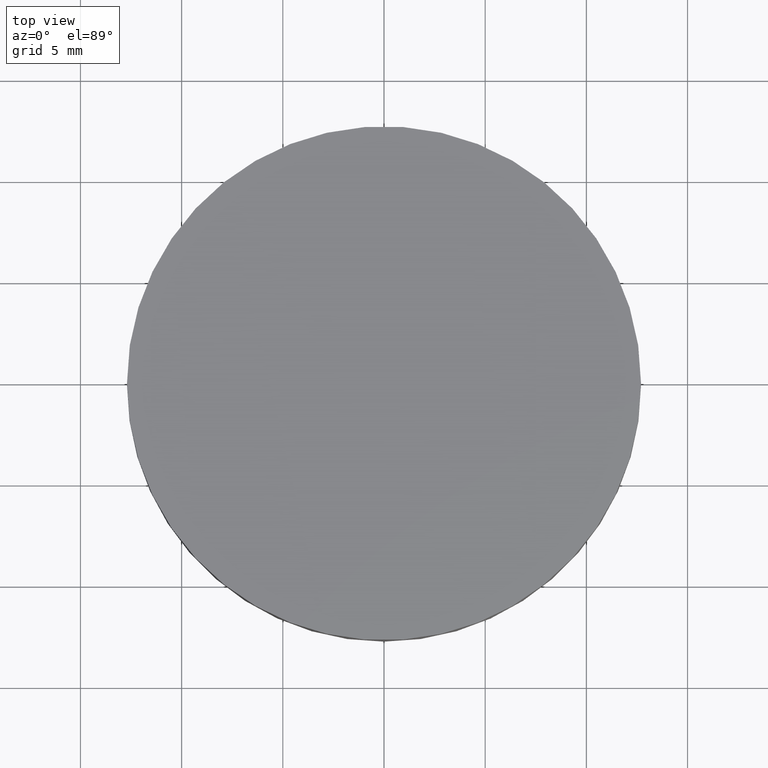
[diagram: clean part render]
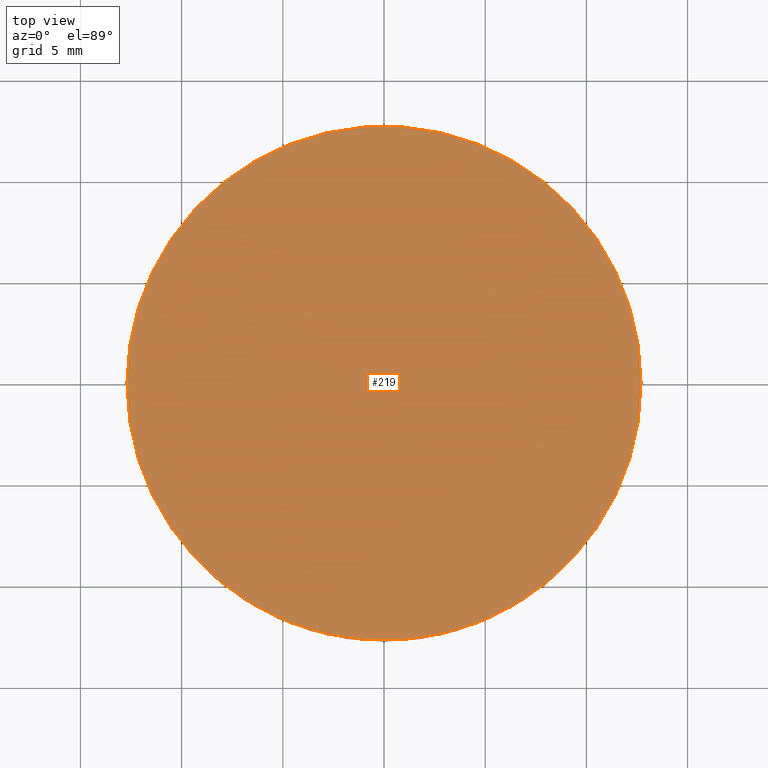
[diagram: same view with one face highlighted and labeled with its STEP entity id]
A machine part, top view. The second image highlights one B-rep face of the part: STEP entity #219.
In plain terms, the highlighted planar face has unit normal (0, 0, 1).
Its self-contained STEP definition (entity closure, byte-faithful):
#20 = DIRECTION ( 'NONE',  ( 1.000000000000000000, 0.0000000000000000000, 0.0000000000000000000 ) ) ;
#31 = DIRECTION ( 'NONE',  ( 0.0000000000000000000, 0.0000000000000000000, 1.000000000000000000 ) ) ;
#36 = PLANE ( 'NONE',  #140 ) ;
#41 = VERTEX_POINT ( 'NONE', #47 ) ;
#45 = EDGE_LOOP ( 'NONE', ( #228, #90 ) ) ;
#47 = CARTESIAN_POINT ( 'NONE',  ( -12.69999999999999900, 3.997792089092478900E-015, 4.000000000000000000 ) ) ;
#56 = CARTESIAN_POINT ( 'NONE',  ( 4.996003610813200500E-016, 2.442490654175340100E-015, 4.000000000000000000 ) ) ;
#59 = CIRCLE ( 'NONE', #82, 12.69999999999999900 ) ;
#67 = CARTESIAN_POINT ( 'NONE',  ( 12.69999999999999900, 2.442490654175340100E-015, 4.000000000000000000 ) ) ;
#82 = AXIS2_PLACEMENT_3D ( 'NONE', #56, #225, #20 ) ;
#90 = ORIENTED_EDGE ( 'NONE', *, *, #221, .F. ) ;
#101 = AXIS2_PLACEMENT_3D ( 'NONE', #227, #163, #205 ) ;
#121 = VERTEX_POINT ( 'NONE', #67 ) ;
#140 = AXIS2_PLACEMENT_3D ( 'NONE', #164, #31, #206 ) ;
#163 = DIRECTION ( 'NONE',  ( -0.0000000000000000000, -0.0000000000000000000, -1.000000000000000000 ) ) ;
#164 = CARTESIAN_POINT ( 'NONE',  ( 0.0000000000000000000, 26.11199999999999800, 4.000000000000000000 ) ) ;
#185 = CIRCLE ( 'NONE', #101, 12.69999999999999900 ) ;
#200 = FACE_OUTER_BOUND ( 'NONE', #45, .T. ) ;
#205 = DIRECTION ( 'NONE',  ( 1.000000000000000000, 0.0000000000000000000, 0.0000000000000000000 ) ) ;
#206 = DIRECTION ( 'NONE',  ( 1.000000000000000000, 0.0000000000000000000, -0.0000000000000000000 ) ) ;
#218 = EDGE_CURVE ( 'NONE', #121, #41, #185, .T. ) ;
#219 = ADVANCED_FACE ( 'NONE', ( #200 ), #36, .T. ) ;
#221 = EDGE_CURVE ( 'NONE', #41, #121, #59, .T. ) ;
#225 = DIRECTION ( 'NONE',  ( -0.0000000000000000000, -0.0000000000000000000, -1.000000000000000000 ) ) ;
#227 = CARTESIAN_POINT ( 'NONE',  ( 4.996003610813200500E-016, 2.442490654175340100E-015, 4.000000000000000000 ) ) ;
#228 = ORIENTED_EDGE ( 'NONE', *, *, #218, .F. ) ;